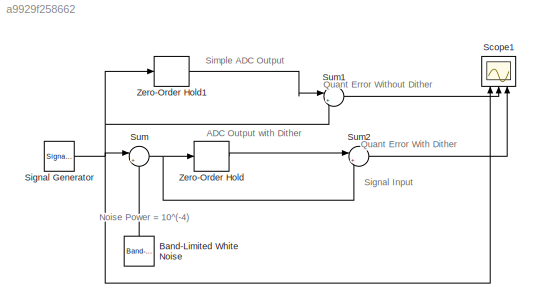
MODEL slx_a9929f258662
KIND model
BLOCK [Reference] Band-Limited White Noise  REF=simulink/Sources/Band-Limited
White Noise
  Cov = [0.0001]
  Ports = [0, 1]
  SourceBlock = simulink/Sources/Band-Limited\nWhite Noise
  SourceType = Band-Limited White Noise.
  Ts = 1/100
  VectorParams1D = on
  seed = [1]
BLOCK [Scope] Scope1
  DataFormat = StructureWithTime
  Floating = off
  LegendLocations = 0.8344     0.89339      0.1402    0.042709\n0.89248     0.58709    0.082108    0.042709\n0.89248     0.28078    0.082108    0.042709
  NumInputPorts = 3
  Ports = [3]
  SampleInput = on
  SampleTime = 0
  SaveName = ScopeData1
  ShowLegends = on
  TimeRange = 0.1
  YMax = 1~1~1.5
  YMin = -1~-1~-1.5
BLOCK [SignalGenerator] Signal Generator
  Frequency = 100
  Ports = [0, 1]
BLOCK [Sum] Sum
  IconShape = round
  InputSameDT = off
  Inputs = |++
  OutDataTypeStr = Inherit: Inherit via internal rule
  Ports = [2, 1]
  SaturateOnIntegerOverflow = off
BLOCK [Sum] Sum1
  IconShape = round
  InputSameDT = off
  Inputs = |+-
  OutDataTypeStr = Inherit: Inherit via internal rule
  Ports = [2, 1]
  SaturateOnIntegerOverflow = off
BLOCK [Sum] Sum2
  IconShape = round
  InputSameDT = off
  Inputs = |+-
  OutDataTypeStr = Inherit: Inherit via internal rule
  Ports = [2, 1]
  SaturateOnIntegerOverflow = off
BLOCK [ZeroOrderHold] Zero-Order Hold
  SampleTime = 1/5000
BLOCK [ZeroOrderHold] Zero-Order Hold1
  SampleTime = 1/5000
ANNOTATION (root): Noise Power = 10^(-4)
ANNOTATION (root): ADC Output with Dither
ANNOTATION (root): Quant Error With Dither
ANNOTATION (root): Quant Error Without Dither
ANNOTATION (root): Signal Input
ANNOTATION (root): Simple ADC Output
LINE Band-Limited White Noise:1 -> Sum:2
NET Signal Generator:1 -> Scope1:1, Sum1:2, Sum:1, Zero-Order Hold1:1
LINE Sum1:1 -> Scope1:2
LINE Sum2:1 -> Scope1:3
NET Sum:1 -> Sum2:2, Zero-Order Hold:1
LINE Zero-Order Hold1:1 -> Sum1:1
LINE Zero-Order Hold:1 -> Sum2:1
note: NET lines group one-source signal fan-out (src -> all destinations, sorted); 1:1 wires keep LINE
